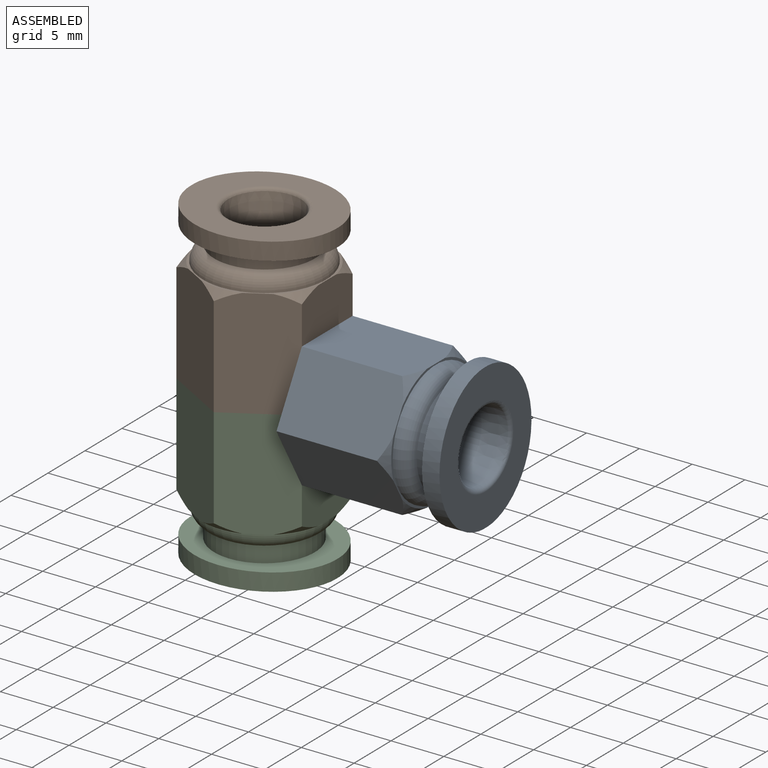
[diagram: assembled view]
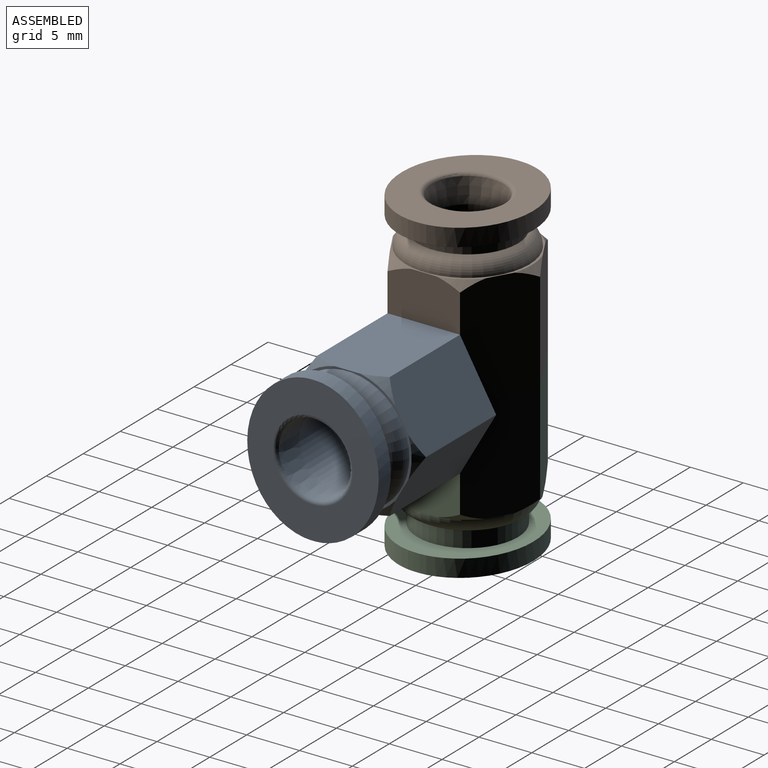
[diagram: assembled view, second angle]
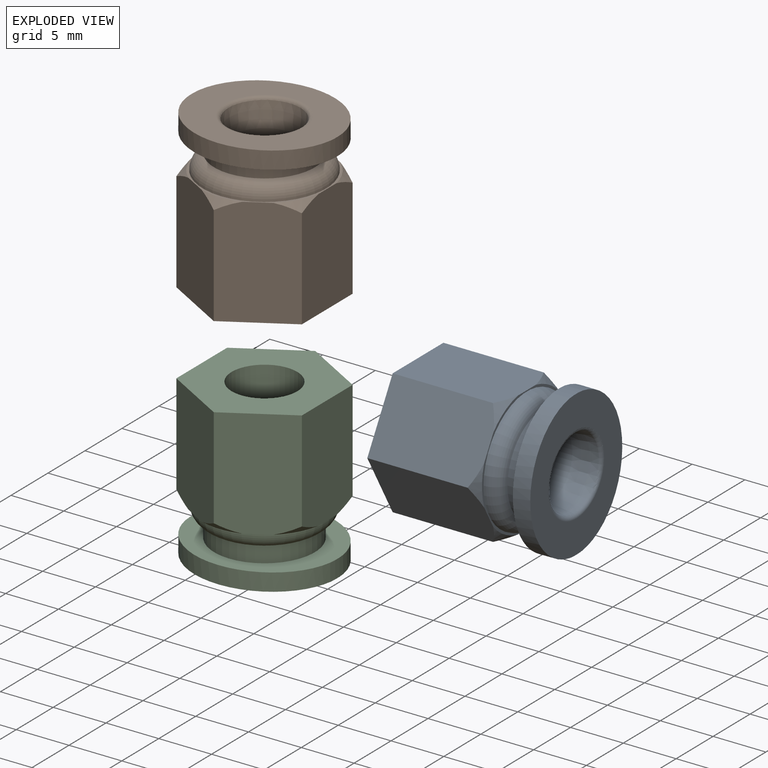
[diagram: exploded view]
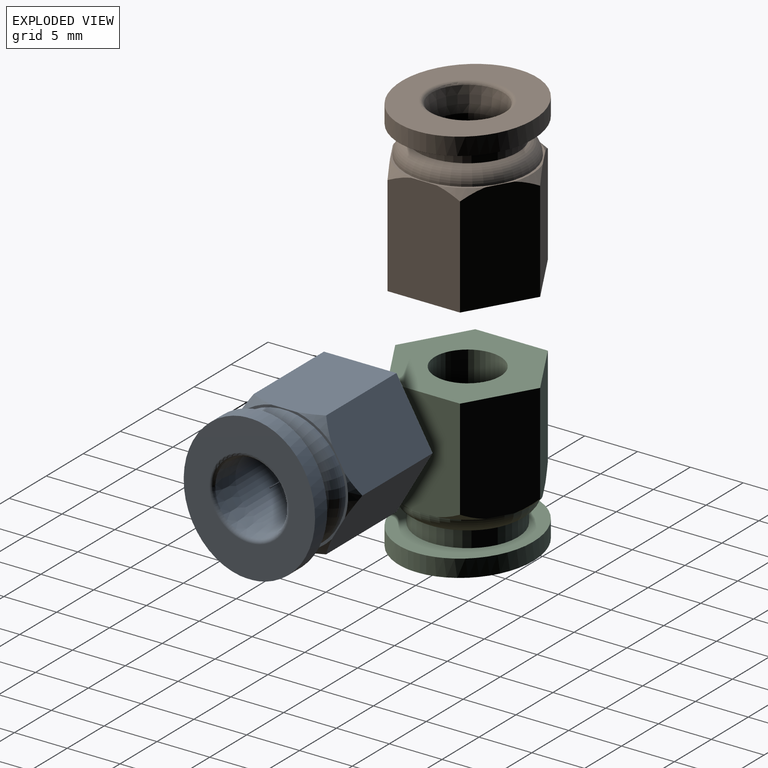
[diagram: exploded view, second angle]
ASSEMBLY  parts=3 mates=2
PART A: 26 faces, bbox 14.1x14x15.3 mm
  f0: plane 10.58x7.14mm, normal (1,0,0), area 69.2mm2, adj f1,f5,f7,f19,f20,f23
  f1: plane 10.57x6.22mm, normal (0.5,0.87,0), area 69.2mm2, adj f0,f2,f7,f15,f20,f23
  f2: plane 10.57x6.22mm, normal (-0.5,0.87,0), area 69.2mm2, adj f1,f3,f7,f15,f16,f23
  f3: plane 10.58x7.14mm, normal (-1,0,0), area 69.2mm2, adj f2,f4,f7,f16,f17,f23
  f4: plane 10.57x6.22mm, normal (-0.5,-0.87,0), area 69.2mm2, adj f3,f5,f7,f17,f18,f23
  f5: plane 10.57x6.22mm, normal (0.5,-0.87,0), area 69.2mm2, adj f0,f4,f7,f18,f19,f23
  f6: cylinder r=6.9mm len=1.74mm, axis (0,0,1), area 2.9mm2, adj f12,f14,f21,f22
  f7: plane 12.14x11.89mm, normal (0,0,1), area 7.3mm2, adj f0,f1,f2,f3,f4,f5,f8,f15
  f8: cylinder r=5.84mm len=11.68mm, axis (0,0,1), area 0.3mm2, adj f7,f10
  f9: torus R=3.79mm, axis (0,0,1), area 10.8mm2, adj f14,f25
  f10: torus R=4.25mm, axis (0,0,1), area 67.8mm2, adj f8,f11
  f11: cylinder r=4.76mm len=9.53mm, axis (0,0,1), area 45.6mm2, adj f10,f12
  f12: plane 13.79x12.45mm, normal (0,0,-1), area 63.8mm2, adj f6,f11,f13,f21,f22
  f13: cylinder r=6.9mm len=1.74mm, axis (0,0,1), area 2.9mm2, adj f12,f14,f21,f22
  f14: plane 13.79x12.45mm, normal (0,0,1), area 90mm2, adj f6,f9,f13,f21,f22
  f15: cone r=6.86mm half-angle=45deg, axis (0,0,-1), area 2.3mm2, adj f1,f2,f7
  f16: cone r=6.86mm half-angle=45deg, axis (0,0,-1), area 2.3mm2, adj f2,f3,f7
  f17: cone r=6.86mm half-angle=45deg, axis (0,0,-1), area 2.3mm2, adj f3,f4,f7
  f18: cone r=6.86mm half-angle=45deg, axis (0,0,-1), area 2.3mm2, adj f4,f5,f7
  f19: cone r=6.86mm half-angle=45deg, axis (0,0,-1), area 2.3mm2, adj f0,f5,f7
  f20: cone r=6.86mm half-angle=45deg, axis (0,0,-1), area 2.3mm2, adj f0,f1,f7
  f21: extruded ~13.68x5.35mm, area 31.2mm2, adj f6,f12,f13,f14
  f22: extruded ~13.68x5.35mm, area 31.2mm2, adj f6,f12,f13,f14
  f23: plane 13.73x11.89mm, normal (0,0,-1), area 92mm2, adj f0,f1,f2,f3,f4,f5,f24
  f24: cylinder r=3.11mm len=12.44mm, axis (0,0,-1), area 243.1mm2, adj f23,f25
  f25: cone r=3.06mm half-angle=7.6deg, axis (0,0,1), area 47.2mm2, adj f9,f24
PART B: same geometry as A
PART C: same geometry as A
PLACE A rot(axis=(0.71,0,0.71),180deg) t=(1.28,-12.86,-5.12)mm
PLACE B t=(-8.98,-12.86,-0.76)mm
PLACE C rot(axis=(1,0,0),180deg) t=(-8.98,-12.86,-9.4)mm
MATE fastened A.f24 <-> B.f0  axis (-1,0,0) through (-3.04,-12.86,-5.12)mm
MATE fastened C.f24 <-> B.f24  axis (0,0,1) through (-8.98,-12.86,-5.08)mm
